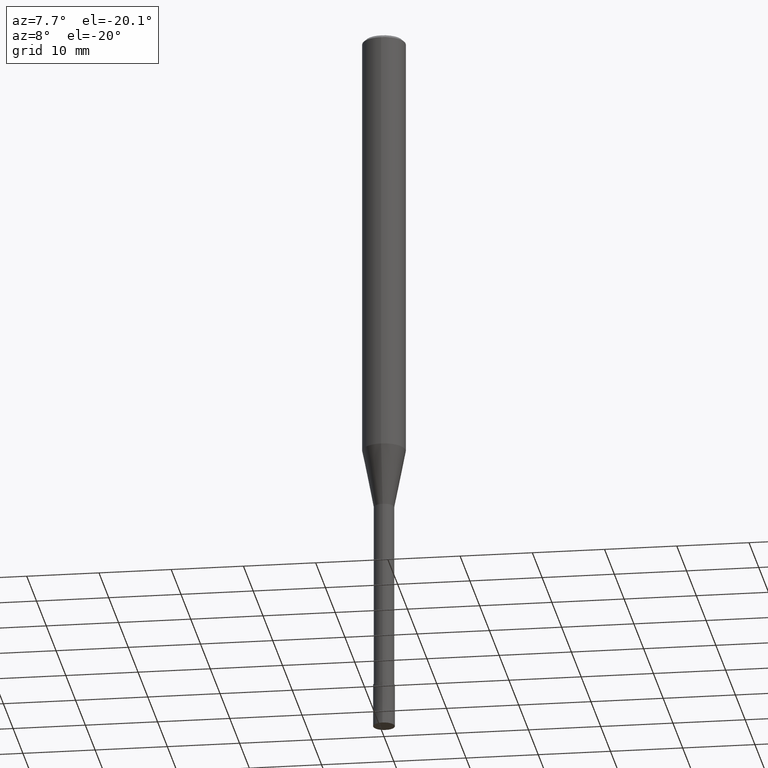
[diagram: clean part render]
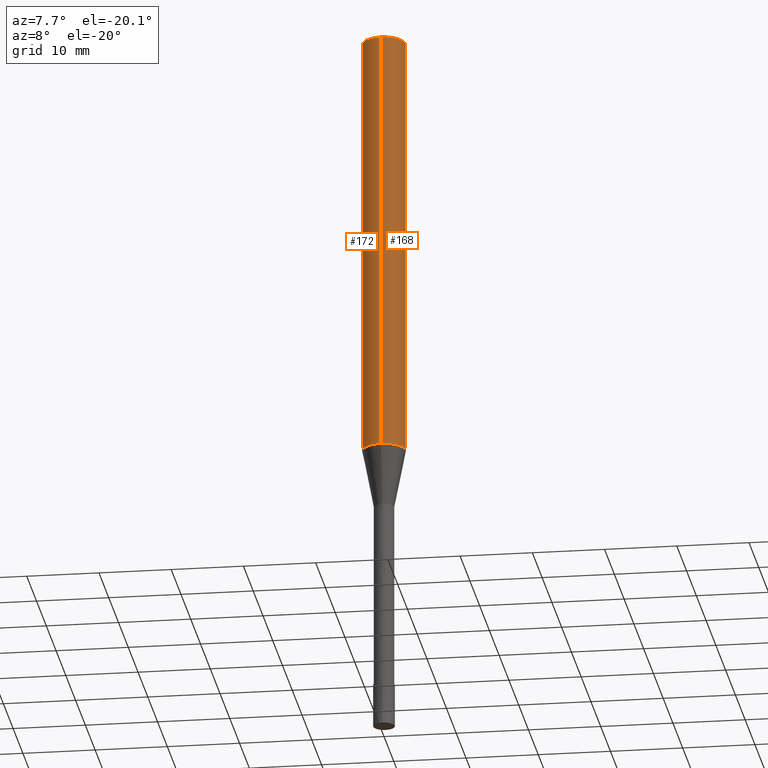
[diagram: same view with one multi-face feature highlighted, each face labeled with its STEP entity id]
A machine part, auxiliary view. The highlighted faces form ONE feature: a constant-radius fillet chain: 2 tangent blend faces with common blend radius 3 mm. The faces share edges in the B-rep.
Their STEP definitions:
[1] entity #168 (Cylinder):
#114=EDGE_CURVE('',#208,#130,#255,.T.);
#130=VERTEX_POINT('',#272);
#132=EDGE_CURVE('',#170,#186,#274,.T.);
#146=EDGE_CURVE('',#186,#130,#289,.T.);
#148=EDGE_CURVE('',#208,#170,#291,.T.);
#168=ADVANCED_FACE('',(#313),#314,.T.);
#170=VERTEX_POINT('',#316);
#186=VERTEX_POINT('',#335);
#208=VERTEX_POINT('',#361);
#255=CIRCLE('',#406,3.0);
#272=CARTESIAN_POINT('',(3.67381906146713E-016,-3.0,-0.399999999999999));
#274=CIRCLE('',#430,3.0);
#289=LINE('',#454,#455);
#291=LINE('',#458,#459);
#313=FACE_OUTER_BOUND('',#487,.T.);
#314=CYLINDRICAL_SURFACE('',#488,3.0);
#316=CARTESIAN_POINT('',(0.0,3.0,-59.769));
#335=CARTESIAN_POINT('',(3.67381906146713E-016,-3.0,-59.769));
#361=CARTESIAN_POINT('',(0.0,3.0,-0.399999999999999));
#406=AXIS2_PLACEMENT_3D('',#573,#574,#575);
#430=AXIS2_PLACEMENT_3D('',#589,#590,#591);
#454=CARTESIAN_POINT('',(3.67381906146713E-016,-3.0,-30.0845));
#455=VECTOR('',#609,1.0);
#458=CARTESIAN_POINT('',(-3.67381906146713E-016,3.0,-30.0845));
#459=VECTOR('',#610,1.0);
#487=EDGE_LOOP('',(#639,#640,#641,#642));
#488=AXIS2_PLACEMENT_3D('',#643,#644,#645);
#573=CARTESIAN_POINT('',(0.0,0.0,-0.399999999999999));
#574=DIRECTION('',(0.0,0.0,-1.0));
#575=DIRECTION('',(0.0,1.0,0.0));
#589=CARTESIAN_POINT('',(0.0,0.0,-59.769));
#590=DIRECTION('',(0.0,0.0,-1.0));
#591=DIRECTION('',(0.0,1.0,0.0));
#609=DIRECTION('',(-0.0,-0.0,1.0));
#610=DIRECTION('',(0.0,0.0,-1.0));
#639=ORIENTED_EDGE('',*,*,#148,.F.);
#640=ORIENTED_EDGE('',*,*,#114,.T.);
#641=ORIENTED_EDGE('',*,*,#146,.F.);
#642=ORIENTED_EDGE('',*,*,#132,.F.);
#643=CARTESIAN_POINT('',(0.0,0.0,-30.0845));
#644=DIRECTION('',(-0.0,-0.0,1.0));
#645=DIRECTION('',(0.0,1.0,0.0));
[2] entity #172 (Cylinder):
#124=EDGE_CURVE('',#130,#208,#266,.T.);
#130=VERTEX_POINT('',#272);
#146=EDGE_CURVE('',#186,#130,#289,.T.);
#148=EDGE_CURVE('',#208,#170,#291,.T.);
#170=VERTEX_POINT('',#316);
#172=ADVANCED_FACE('',(#318),#319,.T.);
#186=VERTEX_POINT('',#335);
#188=EDGE_CURVE('',#186,#170,#337,.T.);
#208=VERTEX_POINT('',#361);
#266=CIRCLE('',#419,3.0);
#272=CARTESIAN_POINT('',(3.67381906146713E-016,-3.0,-0.399999999999999));
#289=LINE('',#454,#455);
#291=LINE('',#458,#459);
#316=CARTESIAN_POINT('',(0.0,3.0,-59.769));
#318=FACE_OUTER_BOUND('',#492,.T.);
#319=CYLINDRICAL_SURFACE('',#493,3.0);
#335=CARTESIAN_POINT('',(3.67381906146713E-016,-3.0,-59.769));
#337=CIRCLE('',#514,3.0);
#361=CARTESIAN_POINT('',(0.0,3.0,-0.399999999999999));
#419=AXIS2_PLACEMENT_3D('',#585,#586,#587);
#454=CARTESIAN_POINT('',(3.67381906146713E-016,-3.0,-30.0845));
#455=VECTOR('',#609,1.0);
#458=CARTESIAN_POINT('',(-3.67381906146713E-016,3.0,-30.0845));
#459=VECTOR('',#610,1.0);
#492=EDGE_LOOP('',(#647,#648,#649,#650));
#493=AXIS2_PLACEMENT_3D('',#651,#652,#653);
#514=AXIS2_PLACEMENT_3D('',#676,#677,#678);
#585=CARTESIAN_POINT('',(0.0,0.0,-0.399999999999999));
#586=DIRECTION('',(0.0,0.0,-1.0));
#587=DIRECTION('',(0.0,1.0,0.0));
#609=DIRECTION('',(-0.0,-0.0,1.0));
#610=DIRECTION('',(0.0,0.0,-1.0));
#647=ORIENTED_EDGE('',*,*,#148,.T.);
#648=ORIENTED_EDGE('',*,*,#188,.F.);
#649=ORIENTED_EDGE('',*,*,#146,.T.);
#650=ORIENTED_EDGE('',*,*,#124,.T.);
#651=CARTESIAN_POINT('',(0.0,0.0,-30.0845));
#652=DIRECTION('',(-0.0,-0.0,1.0));
#653=DIRECTION('',(0.0,1.0,0.0));
#676=CARTESIAN_POINT('',(0.0,0.0,-59.769));
#677=DIRECTION('',(0.0,0.0,-1.0));
#678=DIRECTION('',(0.0,1.0,0.0));